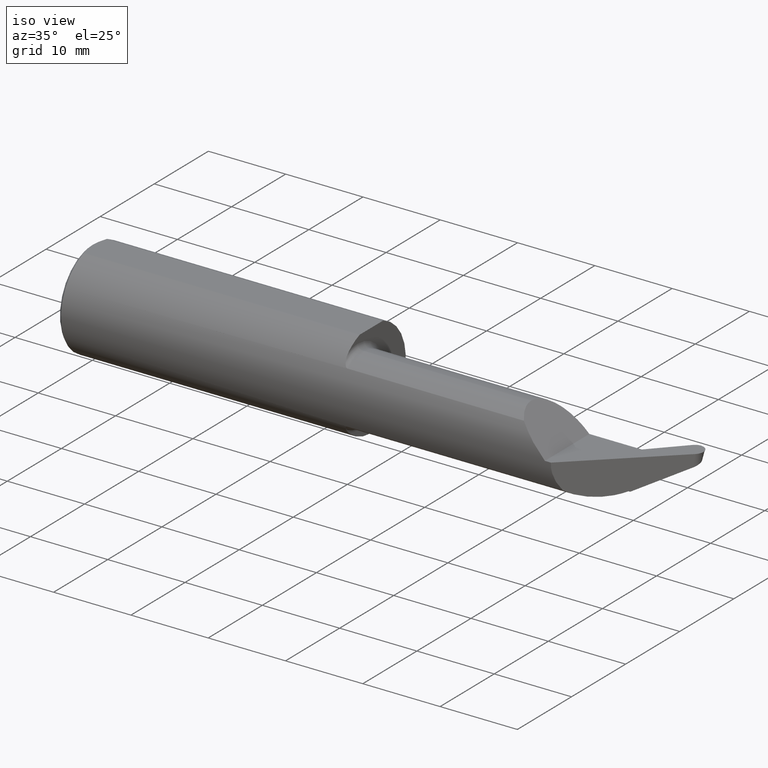
[diagram: clean part render]
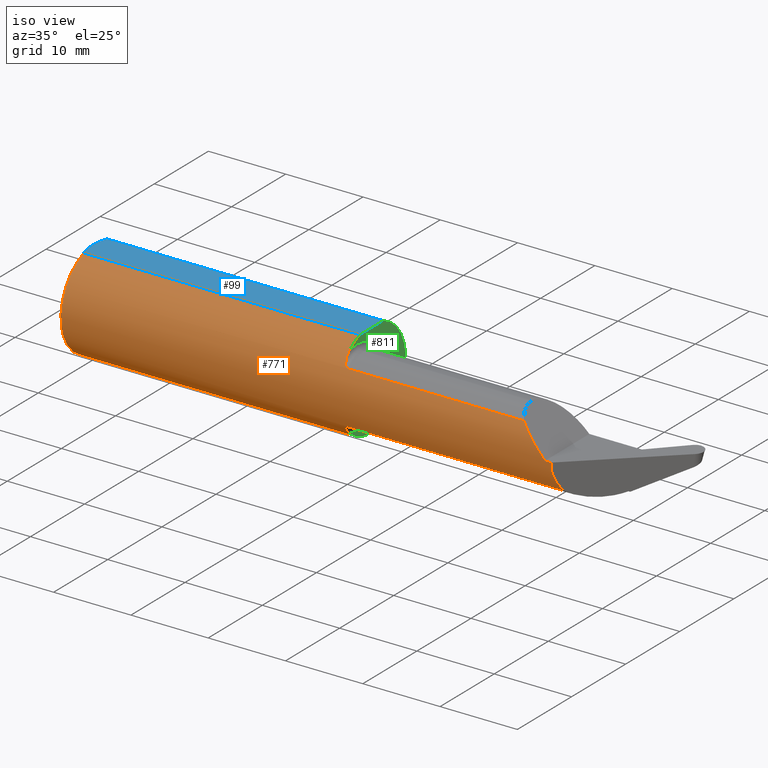
[diagram: same view with three faces highlighted in distinct colors, each labeled with its STEP entity id]
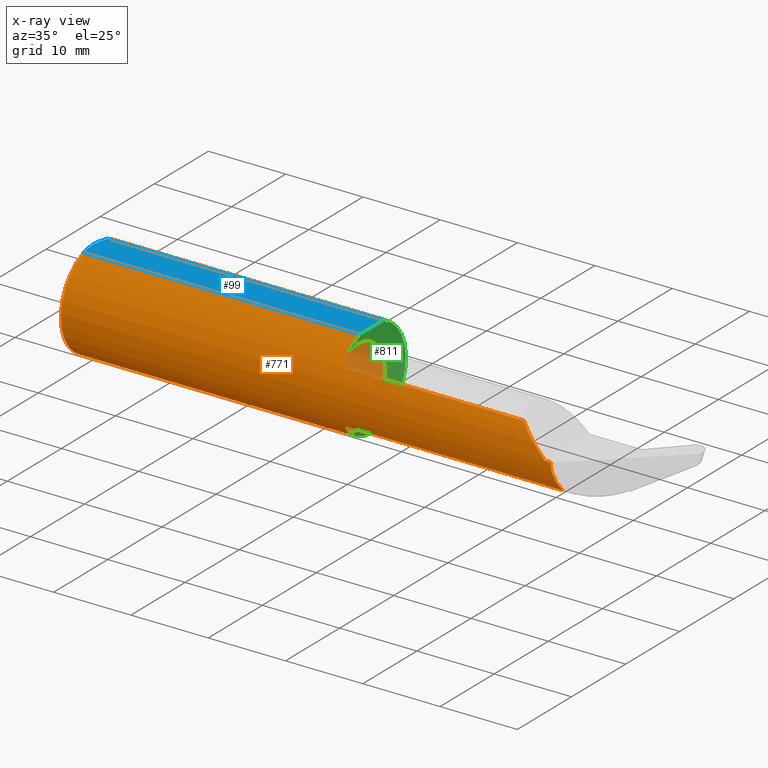
[diagram: x-ray of the same camera — body ghosted, the three highlighted faces saturated]
A machine part, iso view with three faces highlighted in distinct colors.
The next image is the same camera in x-ray (body ghosted, the three faces saturated) — at least one of them is partly hidden behind the body in this view.
Their STEP definitions:

[orange] entity #771 — the highlighted cylindrical surface (partial cylindrical patch) has radius 6.3462 mm, axis along (-1, -0, -0).
#10 = CARTESIAN_POINT ( 'NONE',  ( 1.421699999999999964, 0.000000000000000000, 0.000000000000000000 ) ) ;
#12 = CARTESIAN_POINT ( 'NONE',  ( 2.096954927754681730, -0.2109115923885824251, -0.1339452227446445709 ) ) ;
#14 = CARTESIAN_POINT ( 'NONE',  ( 3.000000000000000444, 0.000000000000000000, 0.000000000000000000 ) ) ;
#24 = EDGE_CURVE ( 'NONE', #809, #554, #758, .T. ) ;
#25 = EDGE_CURVE ( 'NONE', #526, #680, #660, .T. ) ;
#45 = CARTESIAN_POINT ( 'NONE',  ( 1.440516232719195600, -0.2096312696626556893, 0.1359431843828258490 ) ) ;
#47 = VECTOR ( 'NONE', #821, 39.37007874015748143 ) ;
#52 = DIRECTION ( 'NONE',  ( 1.000000000000000000, -0.000000000000000000, -0.000000000000000000 ) ) ;
#54 = CARTESIAN_POINT ( 'NONE',  ( 1.422069308096891360, -0.1740236709403993609, 0.1794003879942989710 ) ) ;
#58 = ORIENTED_EDGE ( 'NONE', *, *, #25, .F. ) ;
#86 = EDGE_CURVE ( 'NONE', #416, #535, #725, .T. ) ;
#92 = CARTESIAN_POINT ( 'NONE',  ( 2.096954927754681730, -0.2109115923885824251, 0.1339452227446445709 ) ) ;
#97 = VERTEX_POINT ( 'NONE', #340 ) ;
#102 = EDGE_LOOP ( 'NONE', ( #515, #753, #307, #650, #726, #345, #58, #738, #120, #181, #185, #231, #667 ) ) ;
#103 = AXIS2_PLACEMENT_3D ( 'NONE', #10, #767, #512 ) ;
#105 = CARTESIAN_POINT ( 'NONE',  ( 2.346054777255357937, -0.2109115923885825639, 0.1339452227446444599 ) ) ;
#110 = CARTESIAN_POINT ( 'NONE',  ( 1.421699999999999964, 0.000000000000000000, 0.000000000000000000 ) ) ;
#112 = EDGE_CURVE ( 'NONE', #795, #535, #451, .T. ) ;
#119 = CARTESIAN_POINT ( 'NONE',  ( 1.439279013400958540, -0.2089922484211624576, 0.1369264698045249695 ) ) ;
#120 = ORIENTED_EDGE ( 'NONE', *, *, #641, .T. ) ;
#142 = CYLINDRICAL_SURFACE ( 'NONE', #567, 0.2498499999999999888 ) ;
#144 = CARTESIAN_POINT ( 'NONE',  ( 1.446699999999999875, -0.2109115923885826471, -0.1339452227446448762 ) ) ;
#145 = CARTESIAN_POINT ( 'NONE',  ( 1.421699999999999964, -0.08526722699841969566, 0.2348499999999999477 ) ) ;
#148 = CARTESIAN_POINT ( 'NONE',  ( 1.434235956346823881, -0.2051861511868701415, -0.1425927214055048575 ) ) ;
#155 = CARTESIAN_POINT ( 'NONE',  ( 1.421699999999999964, -0.1642165498247359634, -0.1883028073706284611 ) ) ;
#180 = CARTESIAN_POINT ( 'NONE',  ( 1.435992829746334909, -0.2068995363356183614, 0.1400856398677452486 ) ) ;
#181 = ORIENTED_EDGE ( 'NONE', *, *, #302, .T. ) ;
#185 = ORIENTED_EDGE ( 'NONE', *, *, #426, .T. ) ;
#191 = VECTOR ( 'NONE', #290, 39.37007874015748143 ) ;
#194 = CARTESIAN_POINT ( 'NONE',  ( 1.429865546287361067, -0.1999563293643358275, -0.1499285236170141977 ) ) ;
#197 = LINE ( 'NONE', #830, #517 ) ;
#201 = CARTESIAN_POINT ( 'NONE',  ( 1.439237473186052441, -0.2089699405038890068, -0.1369606145290533650 ) ) ;
#206 = CIRCLE ( 'NONE', #807, 0.2498499999999999888 ) ;
#208 = EDGE_CURVE ( 'NONE', #547, #600, #812, .T. ) ;
#211 = CARTESIAN_POINT ( 'NONE',  ( 1.440484743460166417, -0.2096175062667572919, -0.1359644531973617232 ) ) ;
#226 = CARTESIAN_POINT ( 'NONE',  ( 0.01500000000000188856, -0.08526722699841957076, 0.2348499999999999477 ) ) ;
#231 = ORIENTED_EDGE ( 'NONE', *, *, #352, .F. ) ;
#253 = DIRECTION ( 'NONE',  ( 1.000000000000000000, 0.000000000000000000, 0.000000000000000000 ) ) ;
#268 = EDGE_CURVE ( 'NONE', #526, #532, #552, .T. ) ;
#269 = DIRECTION ( 'NONE',  ( -1.000000000000000000, -0.000000000000000000, -0.000000000000000000 ) ) ;
#271 = VERTEX_POINT ( 'NONE', #367 ) ;
#279 = VERTEX_POINT ( 'NONE', #747 ) ;
#290 = DIRECTION ( 'NONE',  ( 1.000000000000000000, 0.000000000000000000, 0.000000000000000000 ) ) ;
#294 = CARTESIAN_POINT ( 'NONE',  ( 1.443366560440264124, -0.2105968497256106853, 0.1344424988095974383 ) ) ;
#302 = EDGE_CURVE ( 'NONE', #271, #97, #335, .T. ) ;
#306 = CARTESIAN_POINT ( 'NONE',  ( 2.510656778664931199, -0.2498500000000000998, 8.963876229210863994E-17 ) ) ;
#307 = ORIENTED_EDGE ( 'NONE', *, *, #704, .T. ) ;
#316 = EDGE_CURVE ( 'NONE', #680, #416, #632, .T. ) ;
#329 = CARTESIAN_POINT ( 'NONE',  ( 2.480000000000000426, -0.2498499999999999888, -5.549066237130534971E-17 ) ) ;
#335 = CIRCLE ( 'NONE', #348, 0.2498499999999999888 ) ;
#336 = CARTESIAN_POINT ( 'NONE',  ( 1.421699999999999964, -0.1642165498247359634, -0.1883028073706284611 ) ) ;
#340 = CARTESIAN_POINT ( 'NONE',  ( 0.01500000000000188856, 0.08526722699841957076, 0.2348499999999999477 ) ) ;
#344 = CARTESIAN_POINT ( 'NONE',  ( 2.386373634735572402, -0.2365171946451294638, 0.09362636526442918994 ) ) ;
#345 = ORIENTED_EDGE ( 'NONE', *, *, #316, .F. ) ;
#348 = AXIS2_PLACEMENT_3D ( 'NONE', #546, #686, #816 ) ;
#352 = EDGE_CURVE ( 'NONE', #554, #279, #776, .T. ) ;
#356 = CARTESIAN_POINT ( 'NONE',  ( 1.427861608761569201, -0.1960654850943032435, 0.1550025169877022602 ) ) ;
#359 = DIRECTION ( 'NONE',  ( 1.000000000000000000, 0.000000000000000000, 0.000000000000000000 ) ) ;
#367 = CARTESIAN_POINT ( 'NONE',  ( 0.01500000000000188856, 0.000000000000000000, -0.2498499999999999888 ) ) ;
#374 = VECTOR ( 'NONE', #769, 39.37007874015748143 ) ;
#375 = VECTOR ( 'NONE', #718, 39.37007874015748143 ) ;
#380 = CARTESIAN_POINT ( 'NONE',  ( 1.446699999999999875, -0.2109115923885826749, 0.1339452227446448207 ) ) ;
#395 = CARTESIAN_POINT ( 'NONE',  ( 1.427843744967449480, -0.1960236850867095038, -0.1550539425161193696 ) ) ;
#396 = DIRECTION ( 'NONE',  ( 0.000000000000000000, 0.000000000000000000, 1.000000000000000000 ) ) ;
#398 = AXIS2_PLACEMENT_3D ( 'NONE', #110, #359, #607 ) ;
#410 = CARTESIAN_POINT ( 'NONE',  ( 2.432237492366603249, -0.2498499999999999888, 0.04776250763339776745 ) ) ;
#416 = VERTEX_POINT ( 'NONE', #380 ) ;
#426 = EDGE_CURVE ( 'NONE', #97, #279, #197, .T. ) ;
#434 = CARTESIAN_POINT ( 'NONE',  ( 1.424678594482057248, -0.1877222700471108119, 0.1650084968907569449 ) ) ;
#451 =( BOUNDED_CURVE ( )  B_SPLINE_CURVE ( 3, ( #479, #410, #344, #105 ),
 .UNSPECIFIED., .F., .T. ) 
 B_SPLINE_CURVE_WITH_KNOTS ( ( 4, 4 ),
 ( 4.712388980384689674, 5.278202291926595180 ),
 .UNSPECIFIED. ) 
 CURVE ( )  GEOMETRIC_REPRESENTATION_ITEM ( )  RATIONAL_B_SPLINE_CURVE ( ( 1.000000000000000000, 0.9734987392630287673, 0.9734987392630287673, 1.000000000000000000 ) ) 
 REPRESENTATION_ITEM ( '' )  );
#460 = EDGE_CURVE ( 'NONE', #547, #809, #511, .T. ) ;
#466 = CARTESIAN_POINT ( 'NONE',  ( 2.520160455226426510, -0.2365171946451294083, -0.09362636526442950913 ) ) ;
#479 = CARTESIAN_POINT ( 'NONE',  ( 2.480000000000000426, -0.2498499999999999888, -5.549066237130534971E-17 ) ) ;
#482 = CARTESIAN_POINT ( 'NONE',  ( 1.446699999999999875, -0.2109115923885826749, 0.1339452227446448207 ) ) ;
#500 = CARTESIAN_POINT ( 'NONE',  ( 1.421699999999999964, -0.1642165498247359634, 0.1883028073706284611 ) ) ;
#509 = CARTESIAN_POINT ( 'NONE',  ( 1.446699999999999875, -0.2109115923885826471, -0.1339452227446448762 ) ) ;
#511 = LINE ( 'NONE', #12, #374 ) ;
#512 = DIRECTION ( 'NONE',  ( 0.000000000000000000, 0.000000000000000000, -1.000000000000000000 ) ) ;
#515 = ORIENTED_EDGE ( 'NONE', *, *, #460, .F. ) ;
#517 = VECTOR ( 'NONE', #253, 39.37007874015748143 ) ;
#519 = CARTESIAN_POINT ( 'NONE',  ( 1.444983494997617912, -0.2109115923885818145, -0.1339452227446455146 ) ) ;
#526 = VERTEX_POINT ( 'NONE', #145 ) ;
#532 = VERTEX_POINT ( 'NONE', #226 ) ;
#535 = VERTEX_POINT ( 'NONE', #656 ) ;
#540 = CARTESIAN_POINT ( 'NONE',  ( 1.444996348002435038, -0.2109115923885818977, 0.1339452227446456256 ) ) ;
#546 = CARTESIAN_POINT ( 'NONE',  ( 0.01500000000000188856, 0.000000000000000000, 0.000000000000000000 ) ) ;
#547 = VERTEX_POINT ( 'NONE', #781 ) ;
#549 = CARTESIAN_POINT ( 'NONE',  ( 1.429871543247811516, -0.1999759995858456374, 0.1499037593488207198 ) ) ;
#552 = LINE ( 'NONE', #674, #47 ) ;
#554 = VERTEX_POINT ( 'NONE', #155 ) ;
#567 = AXIS2_PLACEMENT_3D ( 'NONE', #14, #269, #396 ) ;
#571 = CARTESIAN_POINT ( 'NONE',  ( 1.421700000000000630, -0.1743076965831580338, -0.1795024430660143167 ) ) ;
#575 = CARTESIAN_POINT ( 'NONE',  ( 1.421699999999999964, -0.1642165498247359634, 0.1883028073706284611 ) ) ;
#578 = CARTESIAN_POINT ( 'NONE',  ( 3.000000000000000444, -0.2498499999999999333, -5.549066237130534971E-17 ) ) ;
#599 = CARTESIAN_POINT ( 'NONE',  ( 2.508211166450760476, -0.2498499999999999888, -0.04776250763339788541 ) ) ;
#600 = VERTEX_POINT ( 'NONE', #714 ) ;
#602 = CARTESIAN_POINT ( 'NONE',  ( 1.434282689968706226, -0.2052357213566614325, 0.1425217524573972605 ) ) ;
#607 = DIRECTION ( 'NONE',  ( 0.000000000000000000, 0.000000000000000000, -1.000000000000000000 ) ) ;
#611 = CARTESIAN_POINT ( 'NONE',  ( 0.01500000000000188856, 0.000000000000000000, 0.000000000000000000 ) ) ;
#612 = CARTESIAN_POINT ( 'NONE',  ( 1.421699999999999964, -0.1692143377402346993, 0.1839442983303273549 ) ) ;
#632 = B_SPLINE_CURVE_WITH_KNOTS ( 'NONE', 3,
 ( #500, #612, #54, #739, #434, #356, #549, #602, #180, #119, #45, #294, #540, #482 ),
 .UNSPECIFIED., .F., .F.,
 ( 4, 2, 2, 2, 2, 2, 4 ),
 ( 0.0004288698157892727398, 0.0009336780968993031032, 0.001438486378009333575, 0.001943294659119363613, 0.002195698799674379500, 0.002321900869951880938, 0.002448102940229382376 ),
 .UNSPECIFIED. ) ;
#635 = LINE ( 'NONE', #578, #375 ) ;
#641 = EDGE_CURVE ( 'NONE', #532, #271, #206, .T. ) ;
#645 = CARTESIAN_POINT ( 'NONE',  ( 1.423099331548896451, -0.1835726712742151989, -0.1699824922758527701 ) ) ;
#650 = ORIENTED_EDGE ( 'NONE', *, *, #112, .T. ) ;
#652 = DIRECTION ( 'NONE',  ( 0.000000000000000000, 0.000000000000000000, -1.000000000000000000 ) ) ;
#656 = CARTESIAN_POINT ( 'NONE',  ( 2.346054777255357937, -0.2109115923885825639, 0.1339452227446444599 ) ) ;
#660 = CIRCLE ( 'NONE', #103, 0.2498499999999999888 ) ;
#667 = ORIENTED_EDGE ( 'NONE', *, *, #24, .F. ) ;
#674 = CARTESIAN_POINT ( 'NONE',  ( 3.000000000000000444, -0.08526722699841955688, 0.2348499999999999477 ) ) ;
#680 = VERTEX_POINT ( 'NONE', #575 ) ;
#686 = DIRECTION ( 'NONE',  ( 1.000000000000000000, -0.000000000000000000, -0.000000000000000000 ) ) ;
#701 = FACE_OUTER_BOUND ( 'NONE', #102, .T. ) ;
#704 = EDGE_CURVE ( 'NONE', #600, #795, #635, .T. ) ;
#711 = CARTESIAN_POINT ( 'NONE',  ( 1.435941547894474590, -0.2068583287092622403, -0.1401468808397471344 ) ) ;
#714 = CARTESIAN_POINT ( 'NONE',  ( 2.510656778664931199, -0.2498500000000000998, 8.963876229210863994E-17 ) ) ;
#718 = DIRECTION ( 'NONE',  ( -1.000000000000000000, -0.000000000000000000, -0.000000000000000000 ) ) ;
#725 = LINE ( 'NONE', #92, #191 ) ;
#726 = ORIENTED_EDGE ( 'NONE', *, *, #86, .F. ) ;
#738 = ORIENTED_EDGE ( 'NONE', *, *, #268, .T. ) ;
#739 = CARTESIAN_POINT ( 'NONE',  ( 1.423556958242080839, -0.1832683170044281107, 0.1699454654953814203 ) ) ;
#747 = CARTESIAN_POINT ( 'NONE',  ( 1.421699999999999964, 0.08526722699841957076, 0.2348499999999999477 ) ) ;
#753 = ORIENTED_EDGE ( 'NONE', *, *, #208, .T. ) ;
#758 = B_SPLINE_CURVE_WITH_KNOTS ( 'NONE', 3,
 ( #509, #519, #779, #211, #201, #711, #148, #194, #395, #645, #571, #336 ),
 .UNSPECIFIED., .F., .F.,
 ( 4, 2, 2, 2, 2, 4 ),
 ( 1.963928090036606372E-07, 0.0001286476382168837639, 0.0002570988836247638373, 0.0005140013744405233335, 0.001027806356072042109, 0.002055416319335073155 ),
 .UNSPECIFIED. ) ;
#767 = DIRECTION ( 'NONE',  ( 1.000000000000000000, 0.000000000000000000, 0.000000000000000000 ) ) ;
#769 = DIRECTION ( 'NONE',  ( -1.000000000000000000, -0.000000000000000000, -0.000000000000000000 ) ) ;
#771 = ADVANCED_FACE ( 'NONE', ( #701 ), #142, .T. ) ;
#776 = CIRCLE ( 'NONE', #398, 0.2498499999999999888 ) ;
#779 = CARTESIAN_POINT ( 'NONE',  ( 1.443340240609052305, -0.2105909676090298999, -0.1344517602273919421 ) ) ;
#781 = CARTESIAN_POINT ( 'NONE',  ( 2.545554631339533191, -0.2109115923885824251, -0.1339452227446445709 ) ) ;
#787 = CARTESIAN_POINT ( 'NONE',  ( 2.545554631339533191, -0.2109115923885824251, -0.1339452227446445709 ) ) ;
#795 = VERTEX_POINT ( 'NONE', #329 ) ;
#807 = AXIS2_PLACEMENT_3D ( 'NONE', #611, #52, #652 ) ;
#809 = VERTEX_POINT ( 'NONE', #144 ) ;
#812 =( BOUNDED_CURVE ( )  B_SPLINE_CURVE ( 3, ( #787, #466, #599, #306 ),
 .UNSPECIFIED., .F., .F. ) 
 B_SPLINE_CURVE_WITH_KNOTS ( ( 4, 4 ),
 ( 5.765083885558832222, 6.330897197100739504 ),
 .UNSPECIFIED. ) 
 CURVE ( )  GEOMETRIC_REPRESENTATION_ITEM ( )  RATIONAL_B_SPLINE_CURVE ( ( 1.000000000000000000, 0.9734987392630285452, 0.9734987392630285452, 1.000000000000000000 ) ) 
 REPRESENTATION_ITEM ( '' )  );
#816 = DIRECTION ( 'NONE',  ( 0.000000000000000000, 0.000000000000000000, -1.000000000000000000 ) ) ;
#821 = DIRECTION ( 'NONE',  ( -1.000000000000000000, -0.000000000000000000, -0.000000000000000000 ) ) ;
#830 = CARTESIAN_POINT ( 'NONE',  ( 3.000000000000000444, 0.08526722699841955688, 0.2348499999999999477 ) ) ;

[blue] entity #99 — the highlighted planar face has unit normal (-0, 0, -1).
#9 = EDGE_CURVE ( 'NONE', #97, #814, #728, .T. ) ;
#17 = CARTESIAN_POINT ( 'NONE',  ( 0.000000000000000000, 0.000000000000000000, 0.2348499999999984211 ) ) ;
#20 = CARTESIAN_POINT ( 'NONE',  ( 0.006561672718762610358, -0.05761982577936750755, 0.2348499999999999477 ) ) ;
#47 = VECTOR ( 'NONE', #821, 39.37007874015748143 ) ;
#84 = CARTESIAN_POINT ( 'NONE',  ( 0.000000000000000000, 0.000000000000000000, 0.2348499999999984211 ) ) ;
#97 = VERTEX_POINT ( 'NONE', #340 ) ;
#99 = ADVANCED_FACE ( 'NONE', ( #585 ), #662, .F. ) ;
#109 = CARTESIAN_POINT ( 'NONE',  ( 0.000000000000000000, 0.000000000000000000, 0.2348499999999984211 ) ) ;
#111 = ORIENTED_EDGE ( 'NONE', *, *, #268, .F. ) ;
#113 = CARTESIAN_POINT ( 'NONE',  ( 0.01031857118576193569, -0.07154970585445760700, 0.2348500000000000587 ) ) ;
#140 = ORIENTED_EDGE ( 'NONE', *, *, #588, .T. ) ;
#145 = CARTESIAN_POINT ( 'NONE',  ( 1.421699999999999964, -0.08526722699841969566, 0.2348499999999999477 ) ) ;
#197 = LINE ( 'NONE', #830, #517 ) ;
#223 = CARTESIAN_POINT ( 'NONE',  ( 0.000000000000000000, 0.1499999999999999944, 0.2348499999999999477 ) ) ;
#226 = CARTESIAN_POINT ( 'NONE',  ( 0.01500000000000188856, -0.08526722699841957076, 0.2348499999999999477 ) ) ;
#230 = DIRECTION ( 'NONE',  ( -1.000000000000000000, 0.000000000000000000, 0.000000000000000000 ) ) ;
#253 = DIRECTION ( 'NONE',  ( 1.000000000000000000, 0.000000000000000000, 0.000000000000000000 ) ) ;
#268 = EDGE_CURVE ( 'NONE', #526, #532, #552, .T. ) ;
#279 = VERTEX_POINT ( 'NONE', #747 ) ;
#331 = ORIENTED_EDGE ( 'NONE', *, *, #9, .T. ) ;
#334 = CARTESIAN_POINT ( 'NONE',  ( 4.741605957753201955E-16, -0.007307070001631080398, 0.2348499999999999477 ) ) ;
#340 = CARTESIAN_POINT ( 'NONE',  ( 0.01500000000000188856, 0.08526722699841957076, 0.2348499999999999477 ) ) ;
#363 = CARTESIAN_POINT ( 'NONE',  ( 0.01500000000000188856, -0.08526722699841957076, 0.2348499999999999477 ) ) ;
#368 = EDGE_LOOP ( 'NONE', ( #723, #684, #331, #140, #111 ) ) ;
#381 = CARTESIAN_POINT ( 'NONE',  ( 0.01500000000000188856, 0.08526722699841957076, 0.2348499999999999477 ) ) ;
#392 = CARTESIAN_POINT ( 'NONE',  ( 0.005550618807728146739, 0.05757865339283832484, 0.2348499999999999477 ) ) ;
#394 = CARTESIAN_POINT ( 'NONE',  ( 1.421699999999999964, 0.1499999999999999944, 0.2348499999999999477 ) ) ;
#404 = DIRECTION ( 'NONE',  ( -0.000000000000000000, 0.000000000000000000, -1.000000000000000000 ) ) ;
#426 = EDGE_CURVE ( 'NONE', #97, #279, #197, .T. ) ;
#457 = CARTESIAN_POINT ( 'NONE',  ( 4.653323123991945098E-16, 0.02924705782386070874, 0.2348499999999999477 ) ) ;
#459 = DIRECTION ( 'NONE',  ( 0.000000000000000000, -1.000000000000000000, 0.000000000000000000 ) ) ;
#473 = LINE ( 'NONE', #394, #529 ) ;
#492 = AXIS2_PLACEMENT_3D ( 'NONE', #223, #404, #230 ) ;
#517 = VECTOR ( 'NONE', #253, 39.37007874015748143 ) ;
#526 = VERTEX_POINT ( 'NONE', #145 ) ;
#529 = VECTOR ( 'NONE', #459, 39.37007874015748143 ) ;
#532 = VERTEX_POINT ( 'NONE', #226 ) ;
#548 = CARTESIAN_POINT ( 'NONE',  ( 0.002689315299820877608, -0.03632005764864067177, 0.2348499999999999199 ) ) ;
#552 = LINE ( 'NONE', #674, #47 ) ;
#559 = EDGE_CURVE ( 'NONE', #279, #526, #473, .T. ) ;
#580 = CARTESIAN_POINT ( 'NONE',  ( 0.0003471601452190529861, -0.01466881147478106898, 0.2348499999999999477 ) ) ;
#584 = CARTESIAN_POINT ( 'NONE',  ( 0.001692603960146766553, -0.02915258784316880625, 0.2348499999999998644 ) ) ;
#585 = FACE_OUTER_BOUND ( 'NONE', #368, .T. ) ;
#588 = EDGE_CURVE ( 'NONE', #814, #532, #765, .T. ) ;
#662 = PLANE ( 'NONE',  #492 ) ;
#674 = CARTESIAN_POINT ( 'NONE',  ( 3.000000000000000444, -0.08526722699841955688, 0.2348499999999999477 ) ) ;
#684 = ORIENTED_EDGE ( 'NONE', *, *, #426, .F. ) ;
#723 = ORIENTED_EDGE ( 'NONE', *, *, #559, .F. ) ;
#728 = B_SPLINE_CURVE_WITH_KNOTS ( 'NONE', 3,
 ( #381, #392, #457, #17 ),
 .UNSPECIFIED., .F., .F.,
 ( 4, 4 ),
 ( 0.004994743219357597463, 0.007188111787249047702 ),
 .UNSPECIFIED. ) ;
#747 = CARTESIAN_POINT ( 'NONE',  ( 1.421699999999999964, 0.08526722699841957076, 0.2348499999999999477 ) ) ;
#765 = B_SPLINE_CURVE_WITH_KNOTS ( 'NONE', 3,
 ( #84, #334, #580, #584, #548, #20, #113, #363 ),
 .UNSPECIFIED., .F., .F.,
 ( 4, 2, 2, 4 ),
 ( 0.007188111787249047702, 0.007736101870951913456, 0.008284091954654779211, 0.009380072122060510720 ),
 .UNSPECIFIED. ) ;
#814 = VERTEX_POINT ( 'NONE', #109 ) ;
#821 = DIRECTION ( 'NONE',  ( -1.000000000000000000, -0.000000000000000000, -0.000000000000000000 ) ) ;
#830 = CARTESIAN_POINT ( 'NONE',  ( 3.000000000000000444, 0.08526722699841955688, 0.2348499999999999477 ) ) ;

[green] entity #811 — the highlighted planar face has unit normal (1, 0, 0).
#10 = CARTESIAN_POINT ( 'NONE',  ( 1.421699999999999964, 0.000000000000000000, 0.000000000000000000 ) ) ;
#25 = EDGE_CURVE ( 'NONE', #526, #680, #660, .T. ) ;
#35 = CIRCLE ( 'NONE', #48, 0.1990000000000005653 ) ;
#42 = CARTESIAN_POINT ( 'NONE',  ( 1.421699999999999964, 0.09915000000000054325, 0.000000000000000000 ) ) ;
#48 = AXIS2_PLACEMENT_3D ( 'NONE', #215, #212, #265 ) ;
#103 = AXIS2_PLACEMENT_3D ( 'NONE', #10, #767, #512 ) ;
#104 = AXIS2_PLACEMENT_3D ( 'NONE', #42, #220, #289 ) ;
#110 = CARTESIAN_POINT ( 'NONE',  ( 1.421699999999999964, 0.000000000000000000, 0.000000000000000000 ) ) ;
#138 = DIRECTION ( 'NONE',  ( -1.000000000000000000, -0.000000000000000000, -0.000000000000000000 ) ) ;
#145 = CARTESIAN_POINT ( 'NONE',  ( 1.421699999999999964, -0.08526722699841969566, 0.2348499999999999477 ) ) ;
#155 = CARTESIAN_POINT ( 'NONE',  ( 1.421699999999999964, -0.1642165498247359634, -0.1883028073706284611 ) ) ;
#212 = DIRECTION ( 'NONE',  ( -1.000000000000000000, -0.000000000000000000, -0.000000000000000000 ) ) ;
#215 = CARTESIAN_POINT ( 'NONE',  ( 1.421699999999999964, -0.09985000000000000819, 0.000000000000000000 ) ) ;
#220 = DIRECTION ( 'NONE',  ( 1.000000000000000000, 0.000000000000000000, 0.000000000000000000 ) ) ;
#235 = VERTEX_POINT ( 'NONE', #682 ) ;
#238 = ORIENTED_EDGE ( 'NONE', *, *, #478, .T. ) ;
#265 = DIRECTION ( 'NONE',  ( 0.000000000000000000, 0.000000000000000000, 1.000000000000000000 ) ) ;
#272 = PLANE ( 'NONE',  #104 ) ;
#279 = VERTEX_POINT ( 'NONE', #747 ) ;
#289 = DIRECTION ( 'NONE',  ( 0.000000000000000000, 0.000000000000000000, -1.000000000000000000 ) ) ;
#309 = AXIS2_PLACEMENT_3D ( 'NONE', #318, #138, #564 ) ;
#318 = CARTESIAN_POINT ( 'NONE',  ( 1.421699999999999964, -0.09985000000000000819, 0.000000000000000000 ) ) ;
#326 = DIRECTION ( 'NONE',  ( -1.000000000000000000, -0.000000000000000000, -0.000000000000000000 ) ) ;
#333 = FACE_OUTER_BOUND ( 'NONE', #435, .T. ) ;
#352 = EDGE_CURVE ( 'NONE', #554, #279, #776, .T. ) ;
#359 = DIRECTION ( 'NONE',  ( 1.000000000000000000, 0.000000000000000000, 0.000000000000000000 ) ) ;
#378 = ORIENTED_EDGE ( 'NONE', *, *, #352, .T. ) ;
#394 = CARTESIAN_POINT ( 'NONE',  ( 1.421699999999999964, 0.1499999999999999944, 0.2348499999999999477 ) ) ;
#398 = AXIS2_PLACEMENT_3D ( 'NONE', #110, #359, #607 ) ;
#401 = ORIENTED_EDGE ( 'NONE', *, *, #25, .T. ) ;
#409 = EDGE_CURVE ( 'NONE', #680, #235, #411, .T. ) ;
#411 = CIRCLE ( 'NONE', #606, 0.1990000000000005653 ) ;
#435 = EDGE_LOOP ( 'NONE', ( #378, #462, #401, #803, #613, #238 ) ) ;
#459 = DIRECTION ( 'NONE',  ( 0.000000000000000000, -1.000000000000000000, 0.000000000000000000 ) ) ;
#462 = ORIENTED_EDGE ( 'NONE', *, *, #559, .T. ) ;
#473 = LINE ( 'NONE', #394, #529 ) ;
#478 = EDGE_CURVE ( 'NONE', #670, #554, #689, .T. ) ;
#503 = CARTESIAN_POINT ( 'NONE',  ( 1.421699999999999964, -0.09985000000000000819, 0.000000000000000000 ) ) ;
#512 = DIRECTION ( 'NONE',  ( 0.000000000000000000, 0.000000000000000000, -1.000000000000000000 ) ) ;
#520 = CARTESIAN_POINT ( 'NONE',  ( 1.421699999999999964, -0.09984999999999999432, -0.1990000000000005653 ) ) ;
#526 = VERTEX_POINT ( 'NONE', #145 ) ;
#529 = VECTOR ( 'NONE', #459, 39.37007874015748143 ) ;
#554 = VERTEX_POINT ( 'NONE', #155 ) ;
#559 = EDGE_CURVE ( 'NONE', #279, #526, #473, .T. ) ;
#564 = DIRECTION ( 'NONE',  ( 0.000000000000000000, 0.000000000000000000, 1.000000000000000000 ) ) ;
#575 = CARTESIAN_POINT ( 'NONE',  ( 1.421699999999999964, -0.1642165498247359634, 0.1883028073706284611 ) ) ;
#606 = AXIS2_PLACEMENT_3D ( 'NONE', #503, #326, #760 ) ;
#607 = DIRECTION ( 'NONE',  ( 0.000000000000000000, 0.000000000000000000, -1.000000000000000000 ) ) ;
#613 = ORIENTED_EDGE ( 'NONE', *, *, #733, .T. ) ;
#660 = CIRCLE ( 'NONE', #103, 0.2498499999999999888 ) ;
#670 = VERTEX_POINT ( 'NONE', #520 ) ;
#680 = VERTEX_POINT ( 'NONE', #575 ) ;
#682 = CARTESIAN_POINT ( 'NONE',  ( 1.421699999999999964, -0.09985000000000000819, 0.1990000000000005653 ) ) ;
#689 = CIRCLE ( 'NONE', #309, 0.1990000000000005653 ) ;
#733 = EDGE_CURVE ( 'NONE', #235, #670, #35, .T. ) ;
#747 = CARTESIAN_POINT ( 'NONE',  ( 1.421699999999999964, 0.08526722699841957076, 0.2348499999999999477 ) ) ;
#760 = DIRECTION ( 'NONE',  ( 0.000000000000000000, 0.000000000000000000, 1.000000000000000000 ) ) ;
#767 = DIRECTION ( 'NONE',  ( 1.000000000000000000, 0.000000000000000000, 0.000000000000000000 ) ) ;
#776 = CIRCLE ( 'NONE', #398, 0.2498499999999999888 ) ;
#803 = ORIENTED_EDGE ( 'NONE', *, *, #409, .T. ) ;
#811 = ADVANCED_FACE ( 'NONE', ( #333 ), #272, .T. ) ;